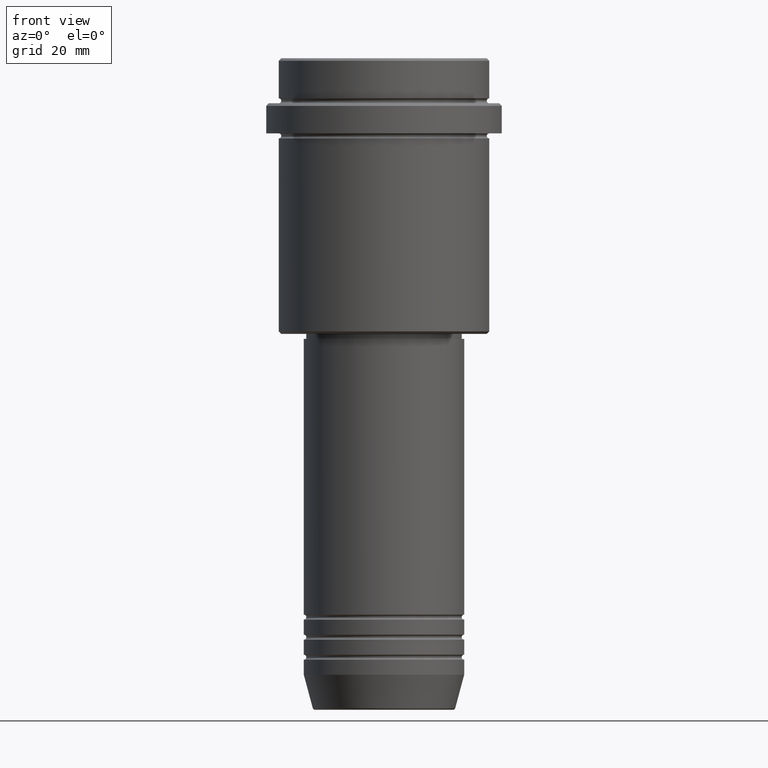
[diagram: clean part render]
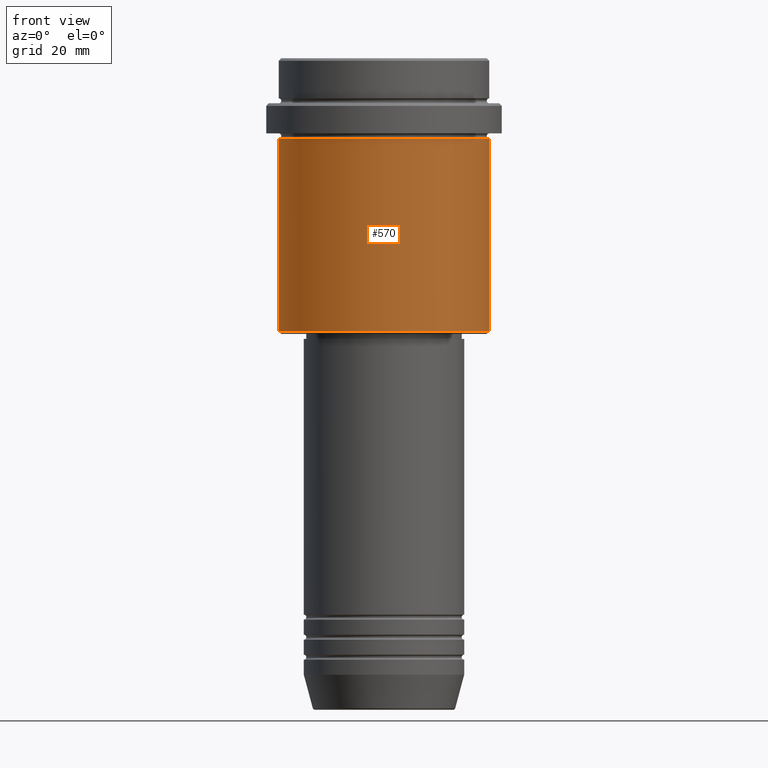
[diagram: same view with one face highlighted and labeled with its STEP entity id]
A machine part, front view. The second image highlights one B-rep face of the part: STEP entity #570.
In plain terms, the highlighted cylindrical surface (partial cylindrical patch) has radius 21 mm, axis along (-0, -0, 1).
Its self-contained STEP definition (entity closure, byte-faithful):
#32 = DIRECTION ( 'NONE',  ( -0.000000000000000000, -0.000000000000000000, 1.000000000000000000 ) ) ;
#103 = AXIS2_PLACEMENT_3D ( 'NONE', #1143, #1136, #167 ) ;
#114 = VERTEX_POINT ( 'NONE', #1149 ) ;
#126 = VECTOR ( 'NONE', #32, 1000.000000000000000 ) ;
#157 = LINE ( 'NONE', #1339, #126 ) ;
#167 = DIRECTION ( 'NONE',  ( 1.000000000000000000, 0.000000000000000000, 0.000000000000000000 ) ) ;
#171 = AXIS2_PLACEMENT_3D ( 'NONE', #1347, #1234, #1000 ) ;
#247 = FACE_OUTER_BOUND ( 'NONE', #1142, .T. ) ;
#278 = CIRCLE ( 'NONE', #429, 20.99999999999999645 ) ;
#283 = CARTESIAN_POINT ( 'NONE',  ( 20.99999999999999645, 0.000000000000000000, -54.49999999999998579 ) ) ;
#367 = ORIENTED_EDGE ( 'NONE', *, *, #1032, .T. ) ;
#368 = VECTOR ( 'NONE', #402, 1000.000000000000000 ) ;
#402 = DIRECTION ( 'NONE',  ( -0.000000000000000000, -0.000000000000000000, 1.000000000000000000 ) ) ;
#429 = AXIS2_PLACEMENT_3D ( 'NONE', #459, #1246, #881 ) ;
#453 = CARTESIAN_POINT ( 'NONE',  ( -20.99999999999999645, 2.571758278209441267E-15, -54.49999999999998579 ) ) ;
#455 = CIRCLE ( 'NONE', #103, 20.99999999999999645 ) ;
#459 = CARTESIAN_POINT ( 'NONE',  ( 0.000000000000000000, 0.000000000000000000, -54.49999999999998579 ) ) ;
#570 = ADVANCED_FACE ( 'NONE', ( #247 ), #899, .T. ) ;
#577 = ORIENTED_EDGE ( 'NONE', *, *, #1386, .T. ) ;
#592 = VERTEX_POINT ( 'NONE', #1216 ) ;
#631 = VERTEX_POINT ( 'NONE', #283 ) ;
#696 = EDGE_CURVE ( 'NONE', #1090, #114, #1407, .T. ) ;
#759 = EDGE_CURVE ( 'NONE', #114, #592, #455, .T. ) ;
#785 = ORIENTED_EDGE ( 'NONE', *, *, #759, .F. ) ;
#881 = DIRECTION ( 'NONE',  ( -1.000000000000000000, 0.000000000000000000, 0.000000000000000000 ) ) ;
#899 = CYLINDRICAL_SURFACE ( 'NONE', #171, 20.99999999999999645 ) ;
#954 = ORIENTED_EDGE ( 'NONE', *, *, #696, .F. ) ;
#1000 = DIRECTION ( 'NONE',  ( 1.000000000000000000, 0.000000000000000000, 0.000000000000000000 ) ) ;
#1032 = EDGE_CURVE ( 'NONE', #1090, #631, #278, .T. ) ;
#1034 = CARTESIAN_POINT ( 'NONE',  ( -20.99999999999999645, 2.571758278209441267E-15, 0.000000000000000000 ) ) ;
#1090 = VERTEX_POINT ( 'NONE', #453 ) ;
#1136 = DIRECTION ( 'NONE',  ( -0.000000000000000000, -0.000000000000000000, 1.000000000000000000 ) ) ;
#1142 = EDGE_LOOP ( 'NONE', ( #954, #367, #577, #785 ) ) ;
#1143 = CARTESIAN_POINT ( 'NONE',  ( 0.000000000000000000, 0.000000000000000000, -16.00000000000000355 ) ) ;
#1149 = CARTESIAN_POINT ( 'NONE',  ( -20.99999999999999645, 2.571758278209441267E-15, -16.00000000000000355 ) ) ;
#1216 = CARTESIAN_POINT ( 'NONE',  ( 20.99999999999999645, 0.000000000000000000, -16.00000000000000355 ) ) ;
#1234 = DIRECTION ( 'NONE',  ( -0.000000000000000000, -0.000000000000000000, 1.000000000000000000 ) ) ;
#1246 = DIRECTION ( 'NONE',  ( -0.000000000000000000, -0.000000000000000000, 1.000000000000000000 ) ) ;
#1339 = CARTESIAN_POINT ( 'NONE',  ( 20.99999999999999645, 0.000000000000000000, 0.000000000000000000 ) ) ;
#1347 = CARTESIAN_POINT ( 'NONE',  ( 0.000000000000000000, 0.000000000000000000, 0.000000000000000000 ) ) ;
#1386 = EDGE_CURVE ( 'NONE', #631, #592, #157, .T. ) ;
#1407 = LINE ( 'NONE', #1034, #368 ) ;